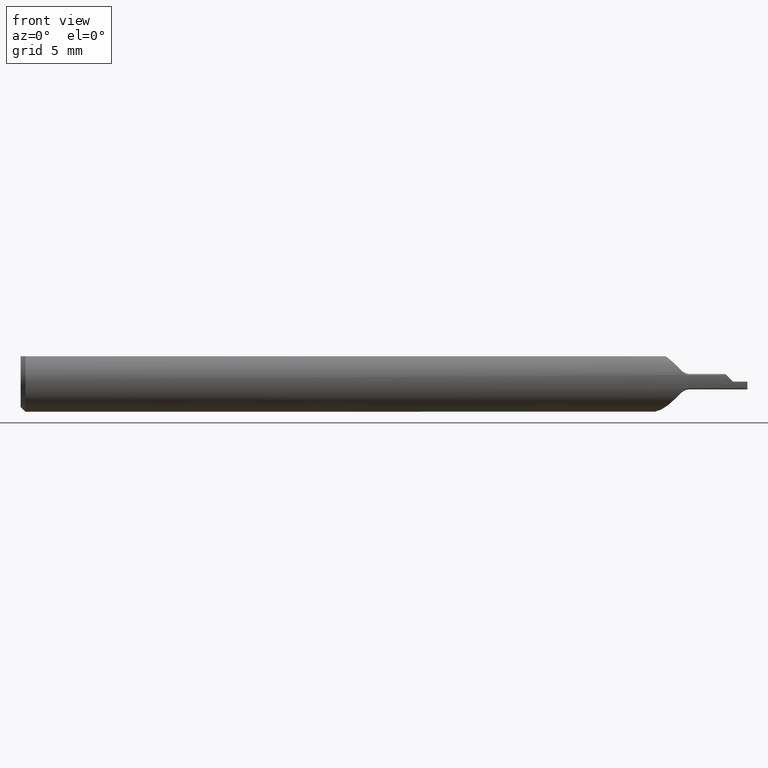
[diagram: clean part render]
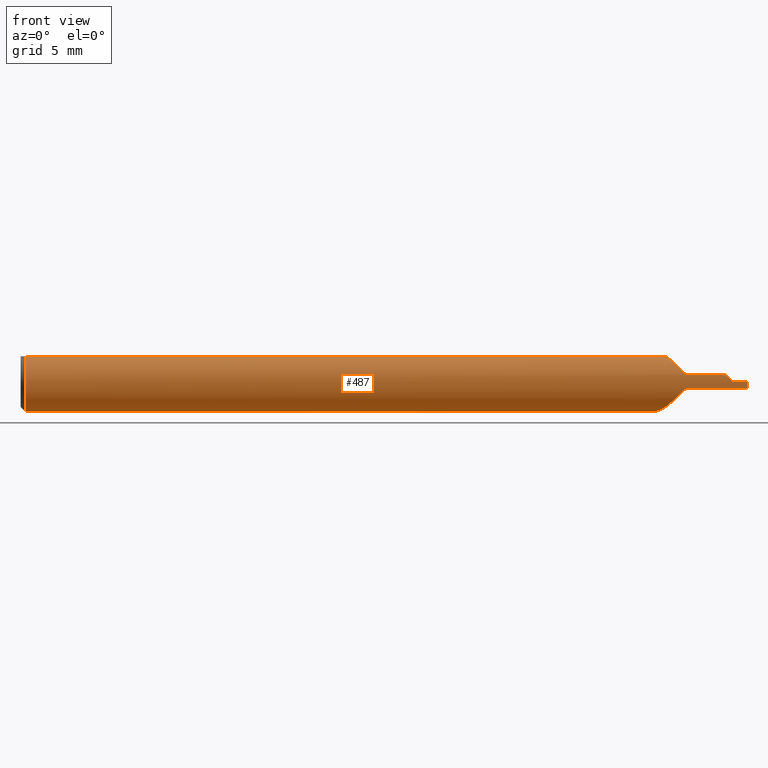
[diagram: same view with one face highlighted and labeled with its STEP entity id]
A machine part, front view. The second image highlights one B-rep face of the part: STEP entity #487.
In plain terms, the highlighted cylindrical surface (edge-blend (fillet) strip) has radius 1.5837 mm, axis along (-1, -0, -0).
Its self-contained STEP definition (entity closure, byte-faithful):
#4 = DIRECTION ( 'NONE',  ( -1.000000000000000000, -0.000000000000000000, -0.000000000000000000 ) ) ;
#7 = LINE ( 'NONE', #446, #410 ) ;
#8 = VECTOR ( 'NONE', #378, 39.37007874015748143 ) ;
#16 = CARTESIAN_POINT ( 'NONE',  ( 1.381000000000000005, -0.06086002865329514372, -0.01354914802930767478 ) ) ;
#18 = CARTESIAN_POINT ( 'NONE',  ( 0.009999999999999887451, 0.000000000000000000, -0.06235000000000000264 ) ) ;
#21 = CARTESIAN_POINT ( 'NONE',  ( 1.273920643488890780, 0.05804728439778031324, -0.02331046180152182914 ) ) ;
#25 =( BOUNDED_CURVE ( )  B_SPLINE_CURVE ( 3, ( #445, #822, #304, #89 ),
 .UNSPECIFIED., .F., .F. ) 
 B_SPLINE_CURVE_WITH_KNOTS ( ( 4, 4 ),
 ( 4.712388980384689674, 4.931444599950887131 ),
 .UNSPECIFIED. ) 
 CURVE ( )  GEOMETRIC_REPRESENTATION_ITEM ( )  RATIONAL_B_SPLINE_CURVE ( ( 1.000000000000000000, 0.9960052155909604465, 0.9960052155909604465, 1.000000000000000000 ) ) 
 REPRESENTATION_ITEM ( '' )  );
#28 = CARTESIAN_POINT ( 'NONE',  ( 1.359844834378485023, -0.05656071896184830528, 0.02658338133628142946 ) ) ;
#34 = ORIENTED_EDGE ( 'NONE', *, *, #450, .T. ) ;
#38 = CARTESIAN_POINT ( 'NONE',  ( 1.320447246675642283, -0.02178334940610882065, -0.05901081408407340273 ) ) ;
#48 = DIRECTION ( 'NONE',  ( -1.000000000000000000, -0.000000000000000000, -0.000000000000000000 ) ) ;
#59 = CARTESIAN_POINT ( 'NONE',  ( 1.363322330470336130, -0.05810997040527625390, 0.02259986370529518118 ) ) ;
#66 = AXIS2_PLACEMENT_3D ( 'NONE', #307, #4, #527 ) ;
#81 = CARTESIAN_POINT ( 'NONE',  ( 1.374127258983880440, -0.06064446188155016987, 0.01458464786448843663 ) ) ;
#85 = DIRECTION ( 'NONE',  ( 1.000000000000000000, 0.000000000000000000, 0.000000000000000000 ) ) ;
#88 = ORIENTED_EDGE ( 'NONE', *, *, #925, .T. ) ;
#89 = CARTESIAN_POINT ( 'NONE',  ( 1.456450851970692240, -0.06086002865329515066, 0.01354914802930776499 ) ) ;
#94 = VERTEX_POINT ( 'NONE', #127 ) ;
#95 = CARTESIAN_POINT ( 'NONE',  ( 1.273115893632432716, 0.05979447392878621537, -0.01839309767483820329 ) ) ;
#96 = CARTESIAN_POINT ( 'NONE',  ( 1.295285513869413485, 0.01635063848551787657, -0.06033004519805543892 ) ) ;
#97 = CARTESIAN_POINT ( 'NONE',  ( 1.381000000000000005, -0.06086002865329514372, 0.01354914802930767478 ) ) ;
#111 = CARTESIAN_POINT ( 'NONE',  ( 1.339530206641906362, -0.04249308427292688983, -0.04632116021825222890 ) ) ;
#117 = CARTESIAN_POINT ( 'NONE',  ( 1.300398987895751590, 0.007676544554126420519, -0.06203328458329463585 ) ) ;
#118 = CARTESIAN_POINT ( 'NONE',  ( 1.363322330470336130, -0.05810997040527625390, 0.02259986370529518118 ) ) ;
#123 = CARTESIAN_POINT ( 'NONE',  ( 0.000000000000000000, 0.000000000000000000, 0.000000000000000000 ) ) ;
#127 = CARTESIAN_POINT ( 'NONE',  ( 1.500000000000000222, -0.06235000000000000264, 0.000000000000000000 ) ) ;
#131 = CARTESIAN_POINT ( 'NONE',  ( 1.331127731721387430, -0.03386738844375222768, 0.05234999999999997294 ) ) ;
#133 = AXIS2_PLACEMENT_3D ( 'NONE', #459, #946, #296 ) ;
#134 = EDGE_CURVE ( 'NONE', #736, #776, #799, .T. ) ;
#143 = VERTEX_POINT ( 'NONE', #865 ) ;
#151 = CARTESIAN_POINT ( 'NONE',  ( 1.359831570835741577, -0.05655480995082499268, -0.02659857489940051917 ) ) ;
#155 = DIRECTION ( 'NONE',  ( -1.000000000000000000, -0.000000000000000000, -0.000000000000000000 ) ) ;
#167 = LINE ( 'NONE', #672, #696 ) ;
#169 = CARTESIAN_POINT ( 'NONE',  ( 1.431542465457123825, -0.06086002865329513678, 0.01354914802930775632 ) ) ;
#173 = LINE ( 'NONE', #169, #524 ) ;
#189 = VERTEX_POINT ( 'NONE', #432 ) ;
#198 = DIRECTION ( 'NONE',  ( 1.000000000000000000, 0.000000000000000000, 0.000000000000000000 ) ) ;
#216 = ORIENTED_EDGE ( 'NONE', *, *, #295, .T. ) ;
#227 = ORIENTED_EDGE ( 'NONE', *, *, #134, .F. ) ;
#232 = CARTESIAN_POINT ( 'NONE',  ( 1.281611693946026698, 0.04189604565662205515, 0.04715592831881575825 ) ) ;
#236 = EDGE_CURVE ( 'NONE', #294, #840, #415, .T. ) ;
#238 = CARTESIAN_POINT ( 'NONE',  ( 1.363322330470336130, -0.05810997040527625390, -0.02259986370529518118 ) ) ;
#240 = CARTESIAN_POINT ( 'NONE',  ( 1.363322330470336130, -0.05810997040527625390, -0.02259986370529518118 ) ) ;
#246 = B_SPLINE_CURVE_WITH_KNOTS ( 'NONE', 3,
 ( #474, #264, #111, #404, #38, #625, #479, #773, #117, #96, #387, #318, #386, #676, #812, #21, #95, #817, #894, #827, #607, #885, #232, #463 ),
 .UNSPECIFIED., .F., .F.,
 ( 4, 2, 2, 2, 2, 2, 2, 2, 2, 2, 2, 4 ),
 ( 0.0004181303876200363930, 0.001201417384251923445, 0.001984704380883810931, 0.002376347879199748169, 0.002767991377515685407, 0.003159634875831623078, 0.003551278374147560750, 0.004334565370779443899, 0.004726208869095386775, 0.005117852367411327916, 0.005901139364043211932, 0.006684426360675095949 ),
 .UNSPECIFIED. ) ;
#247 = DIRECTION ( 'NONE',  ( 1.000000000000000000, 0.000000000000000000, 0.000000000000000000 ) ) ;
#250 = VERTEX_POINT ( 'NONE', #452 ) ;
#264 = CARTESIAN_POINT ( 'NONE',  ( 1.346165295145469232, -0.04807243733824484444, -0.04047936579520317046 ) ) ;
#274 = ORIENTED_EDGE ( 'NONE', *, *, #930, .F. ) ;
#280 = CARTESIAN_POINT ( 'NONE',  ( 1.352777272496920480, -0.05235000000000001458, 0.03386738844375219298 ) ) ;
#294 = VERTEX_POINT ( 'NONE', #238 ) ;
#295 = EDGE_CURVE ( 'NONE', #143, #94, #406, .T. ) ;
#296 = DIRECTION ( 'NONE',  ( 0.000000000000000000, 0.000000000000000000, -1.000000000000000000 ) ) ;
#298 = ORIENTED_EDGE ( 'NONE', *, *, #870, .F. ) ;
#304 = CARTESIAN_POINT ( 'NONE',  ( 1.460903670666237053, -0.06185135088873648657, 0.009096329333762876931 ) ) ;
#306 = DIRECTION ( 'NONE',  ( -1.000000000000000000, -0.000000000000000000, -0.000000000000000000 ) ) ;
#307 = CARTESIAN_POINT ( 'NONE',  ( 1.500000000000000222, 0.000000000000000000, 0.000000000000000000 ) ) ;
#318 = CARTESIAN_POINT ( 'NONE',  ( 1.288243343854815759, 0.02912554256526329530, -0.05532257426885173884 ) ) ;
#319 = EDGE_CURVE ( 'NONE', #143, #189, #167, .T. ) ;
#327 = CARTESIAN_POINT ( 'NONE',  ( 1.352777272496920480, -0.05235000000000001458, 0.03386738844375219298 ) ) ;
#340 = ORIENTED_EDGE ( 'NONE', *, *, #689, .F. ) ;
#342 = VERTEX_POINT ( 'NONE', #18 ) ;
#350 = CARTESIAN_POINT ( 'NONE',  ( 1.456450851970692240, -0.06086002865329515066, 0.01354914802930776499 ) ) ;
#353 = ORIENTED_EDGE ( 'NONE', *, *, #236, .F. ) ;
#358 = VERTEX_POINT ( 'NONE', #97 ) ;
#373 = EDGE_CURVE ( 'NONE', #776, #560, #671, .T. ) ;
#378 = DIRECTION ( 'NONE',  ( -1.000000000000000000, -0.000000000000000000, -0.000000000000000000 ) ) ;
#381 = ORIENTED_EDGE ( 'NONE', *, *, #940, .F. ) ;
#386 = CARTESIAN_POINT ( 'NONE',  ( 1.286084177620281821, 0.03324347811187151197, -0.05295995383883918967 ) ) ;
#387 = CARTESIAN_POINT ( 'NONE',  ( 1.292860658073492042, 0.02065008878837636813, -0.05901235706600572312 ) ) ;
#393 = CIRCLE ( 'NONE', #133, 0.06235000000000000264 ) ;
#398 = CARTESIAN_POINT ( 'NONE',  ( 1.352777272496920480, -0.05235000000000001458, 0.03386738844375219298 ) ) ;
#404 = CARTESIAN_POINT ( 'NONE',  ( 1.326762634085469683, -0.02944546883437135915, -0.05553626256883986700 ) ) ;
#405 = DIRECTION ( 'NONE',  ( 0.000000000000000000, 0.000000000000000000, -1.000000000000000000 ) ) ;
#406 = CIRCLE ( 'NONE', #66, 0.06235000000000000264 ) ;
#409 = ORIENTED_EDGE ( 'NONE', *, *, #706, .T. ) ;
#410 = VECTOR ( 'NONE', #306, 39.37007874015748143 ) ;
#415 = B_SPLINE_CURVE_WITH_KNOTS ( 'NONE', 3,
 ( #735, #151, #661, #657 ),
 .UNSPECIFIED., .F., .F.,
 ( 4, 4 ),
 ( 3.141556408836831251E-07, 0.0004181303876200363930 ),
 .UNSPECIFIED. ) ;
#416 = DIRECTION ( 'NONE',  ( 0.000000000000000000, 0.000000000000000000, 1.000000000000000000 ) ) ;
#417 = VERTEX_POINT ( 'NONE', #829 ) ;
#427 = CARTESIAN_POINT ( 'NONE',  ( 0.009999999999999887451, -0.03386738844375224849, 0.05234999999999997294 ) ) ;
#432 = CARTESIAN_POINT ( 'NONE',  ( 1.381000000000000005, -0.06086002865329514372, -0.01354914802930767478 ) ) ;
#445 = CARTESIAN_POINT ( 'NONE',  ( 1.470000000000000195, -0.06235000000000005121, 3.673940397442043783E-18 ) ) ;
#446 = CARTESIAN_POINT ( 'NONE',  ( 2.249639673992775190E-32, -0.06234999999999999570, 1.836970198721025004E-16 ) ) ;
#450 = EDGE_CURVE ( 'NONE', #342, #417, #620, .T. ) ;
#451 = CARTESIAN_POINT ( 'NONE',  ( 1.365514962631105833, -0.05908680501565560100, 0.02008817465087433043 ) ) ;
#452 = CARTESIAN_POINT ( 'NONE',  ( 1.285778608326025862, 0.03386738844375224849, 0.05234999999999997294 ) ) ;
#454 = CARTESIAN_POINT ( 'NONE',  ( 1.470000000000000195, -0.06235000000000005121, 3.673940397442043783E-18 ) ) ;
#459 = CARTESIAN_POINT ( 'NONE',  ( 0.009999999999999887451, 0.000000000000000000, 0.000000000000000000 ) ) ;
#463 = CARTESIAN_POINT ( 'NONE',  ( 1.285778608326025862, 0.03386738844375224849, 0.05234999999999997294 ) ) ;
#474 = CARTESIAN_POINT ( 'NONE',  ( 1.352777272496920480, -0.05235000000000000764, -0.03386738844375219298 ) ) ;
#475 = CARTESIAN_POINT ( 'NONE',  ( 0.009999999999999887451, 0.000000000000000000, 0.000000000000000000 ) ) ;
#479 = CARTESIAN_POINT ( 'NONE',  ( 1.308734136439523743, -0.005404829685293316768, -0.06226616800050831929 ) ) ;
#487 = ADVANCED_FACE ( 'NONE', ( #775 ), #704, .T. ) ;
#501 = ORIENTED_EDGE ( 'NONE', *, *, #651, .F. ) ;
#522 = CARTESIAN_POINT ( 'NONE',  ( 1.363322330470336130, -0.05810997040527625390, 0.02259986370529518118 ) ) ;
#524 = VECTOR ( 'NONE', #85, 39.37007874015748143 ) ;
#527 = DIRECTION ( 'NONE',  ( 0.000000000000000000, 0.000000000000000000, 1.000000000000000000 ) ) ;
#528 = VERTEX_POINT ( 'NONE', #350 ) ;
#530 = CARTESIAN_POINT ( 'NONE',  ( 1.377510812968343101, -0.06086002865329517147, -0.01354914802930767478 ) ) ;
#535 = CARTESIAN_POINT ( 'NONE',  ( 1.365514613592297311, -0.05908664951645564711, -0.02008857447892331907 ) ) ;
#560 = VERTEX_POINT ( 'NONE', #59 ) ;
#563 = B_SPLINE_CURVE_WITH_KNOTS ( 'NONE', 3,
 ( #522, #451, #891, #81, #582, #896 ),
 .UNSPECIFIED., .F., .F.,
 ( 4, 2, 4 ),
 ( 3.125120641376370901E-07, 0.0002613270397793493569, 0.0005223415674945610602 ),
 .UNSPECIFIED. ) ;
#572 = AXIS2_PLACEMENT_3D ( 'NONE', #475, #198, #405 ) ;
#582 = CARTESIAN_POINT ( 'NONE',  ( 1.377510400263074475, -0.06086002865335832929, 0.01354914802902414117 ) ) ;
#605 = VERTEX_POINT ( 'NONE', #427 ) ;
#607 = CARTESIAN_POINT ( 'NONE',  ( 1.273449894689599349, 0.05901934636845062448, 0.02249102507624298891 ) ) ;
#615 = ORIENTED_EDGE ( 'NONE', *, *, #726, .T. ) ;
#620 = CIRCLE ( 'NONE', #572, 0.06235000000000000264 ) ;
#625 = CARTESIAN_POINT ( 'NONE',  ( 1.311602417059390513, -0.009602664449007329919, -0.06174648437792384925 ) ) ;
#651 = EDGE_CURVE ( 'NONE', #560, #358, #563, .T. ) ;
#657 = CARTESIAN_POINT ( 'NONE',  ( 1.352777272496920480, -0.05235000000000000764, -0.03386738844375219298 ) ) ;
#661 = CARTESIAN_POINT ( 'NONE',  ( 1.356304193631566735, -0.05463171171112799623, -0.03034046730910573697 ) ) ;
#664 = CARTESIAN_POINT ( 'NONE',  ( 1.374127136360435042, -0.06064273473739695969, -0.01458945478556078305 ) ) ;
#668 = ORIENTED_EDGE ( 'NONE', *, *, #811, .F. ) ;
#671 = B_SPLINE_CURVE_WITH_KNOTS ( 'NONE', 3,
 ( #327, #839, #28, #118 ),
 .UNSPECIFIED., .F., .F.,
 ( 4, 4 ),
 ( 0.0008625561007049493707, 0.001277185343998315202 ),
 .UNSPECIFIED. ) ;
#672 = CARTESIAN_POINT ( 'NONE',  ( 1.431542465457123825, -0.06086002865329513678, -0.01354914802930775632 ) ) ;
#676 = CARTESIAN_POINT ( 'NONE',  ( 1.280256414253380770, 0.04465443594961692603, -0.04453039456783860345 ) ) ;
#689 = EDGE_CURVE ( 'NONE', #250, #417, #747, .T. ) ;
#696 = VECTOR ( 'NONE', #155, 39.37007874015748143 ) ;
#697 = LINE ( 'NONE', #768, #837 ) ;
#704 = CYLINDRICAL_SURFACE ( 'NONE', #727, 0.06235000000000000264 ) ;
#706 = EDGE_CURVE ( 'NONE', #605, #342, #393, .T. ) ;
#726 = EDGE_CURVE ( 'NONE', #94, #908, #7, .T. ) ;
#727 = AXIS2_PLACEMENT_3D ( 'NONE', #123, #48, #416 ) ;
#734 = CARTESIAN_POINT ( 'NONE',  ( 1.331127731721387430, -0.03386738844375222768, 0.05234999999999997294 ) ) ;
#735 = CARTESIAN_POINT ( 'NONE',  ( 1.363322330470336130, -0.05810997040527625390, -0.02259986370529518118 ) ) ;
#736 = VERTEX_POINT ( 'NONE', #734 ) ;
#740 = B_SPLINE_CURVE_WITH_KNOTS ( 'NONE', 3,
 ( #16, #530, #664, #807, #535, #240 ),
 .UNSPECIFIED., .F., .F.,
 ( 4, 2, 4 ),
 ( 1.968398792880873590E-07, 0.0002618823034121879633, 0.0005235677669450879059 ),
 .UNSPECIFIED. ) ;
#747 = LINE ( 'NONE', #875, #8 ) ;
#768 = CARTESIAN_POINT ( 'NONE',  ( 0.000000000000000000, -0.03386738844375224849, 0.05234999999999997294 ) ) ;
#772 = ORIENTED_EDGE ( 'NONE', *, *, #319, .F. ) ;
#773 = CARTESIAN_POINT ( 'NONE',  ( 1.303116131065930938, 0.003257686790270800277, -0.06241534537412294498 ) ) ;
#775 = FACE_OUTER_BOUND ( 'NONE', #853, .T. ) ;
#776 = VERTEX_POINT ( 'NONE', #398 ) ;
#799 = B_SPLINE_CURVE_WITH_KNOTS ( 'NONE', 3,
 ( #131, #868, #932, #280 ),
 .UNSPECIFIED., .F., .F.,
 ( 4, 4 ),
 ( 4.636622646634427029E-07, 0.0008625561007049493707 ),
 .UNSPECIFIED. ) ;
#807 = CARTESIAN_POINT ( 'NONE',  ( 1.368157920637270042, -0.05976086399941057947, -0.01786148374055649551 ) ) ;
#811 = EDGE_CURVE ( 'NONE', #605, #736, #697, .T. ) ;
#812 = CARTESIAN_POINT ( 'NONE',  ( 1.277079109287525993, 0.05130975523370769759, -0.03682663355894738588 ) ) ;
#817 = CARTESIAN_POINT ( 'NONE',  ( 1.272106762947702530, 0.06199265033871646097, -0.008402169867246751106 ) ) ;
#822 = CARTESIAN_POINT ( 'NONE',  ( 1.465438167680649384, -0.06235000000000001652, 0.004561832319350930288 ) ) ;
#827 = CARTESIAN_POINT ( 'NONE',  ( 1.272109881791062991, 0.06198804123523020404, 0.01233068805707061497 ) ) ;
#828 = CARTESIAN_POINT ( 'NONE',  ( 1.352777272496920480, -0.05235000000000000764, -0.03386738844375219298 ) ) ;
#829 = CARTESIAN_POINT ( 'NONE',  ( 0.009999999999999887451, 0.03386738844375224849, 0.05234999999999997294 ) ) ;
#837 = VECTOR ( 'NONE', #247, 39.37007874015748143 ) ;
#839 = CARTESIAN_POINT ( 'NONE',  ( 1.356317377333119856, -0.05464024079502591974, 0.03032728360755709493 ) ) ;
#840 = VERTEX_POINT ( 'NONE', #828 ) ;
#853 = EDGE_LOOP ( 'NONE', ( #772, #216, #615, #88, #274, #501, #866, #227, #668, #409, #34, #340, #298, #353, #381 ) ) ;
#865 = CARTESIAN_POINT ( 'NONE',  ( 1.500000000000000222, -0.06086002865329515066, -0.01354914802930782744 ) ) ;
#866 = ORIENTED_EDGE ( 'NONE', *, *, #373, .F. ) ;
#868 = CARTESIAN_POINT ( 'NONE',  ( 1.338241835682736358, -0.04141186229438938160, 0.04746916663795109487 ) ) ;
#870 = EDGE_CURVE ( 'NONE', #840, #250, #246, .T. ) ;
#875 = CARTESIAN_POINT ( 'NONE',  ( 0.000000000000000000, 0.03386738844375224849, 0.05234999999999997294 ) ) ;
#885 = CARTESIAN_POINT ( 'NONE',  ( 1.278218350145432058, 0.04892583888068488540, 0.03994235527057211216 ) ) ;
#891 = CARTESIAN_POINT ( 'NONE',  ( 1.368104256712942890, -0.05975121160065675202, 0.01789568167149449204 ) ) ;
#894 = CARTESIAN_POINT ( 'NONE',  ( 1.271883796799531119, 0.06248333580746406185, -0.003180472041542468844 ) ) ;
#896 = CARTESIAN_POINT ( 'NONE',  ( 1.381000000000000005, -0.06086002865329514372, 0.01354914802930767478 ) ) ;
#908 = VERTEX_POINT ( 'NONE', #454 ) ;
#925 = EDGE_CURVE ( 'NONE', #908, #528, #25, .T. ) ;
#930 = EDGE_CURVE ( 'NONE', #358, #528, #173, .T. ) ;
#932 = CARTESIAN_POINT ( 'NONE',  ( 1.345416726515329620, -0.04758815721267893595, 0.04122793442534923580 ) ) ;
#940 = EDGE_CURVE ( 'NONE', #189, #294, #740, .T. ) ;
#946 = DIRECTION ( 'NONE',  ( 1.000000000000000000, 0.000000000000000000, 0.000000000000000000 ) ) ;